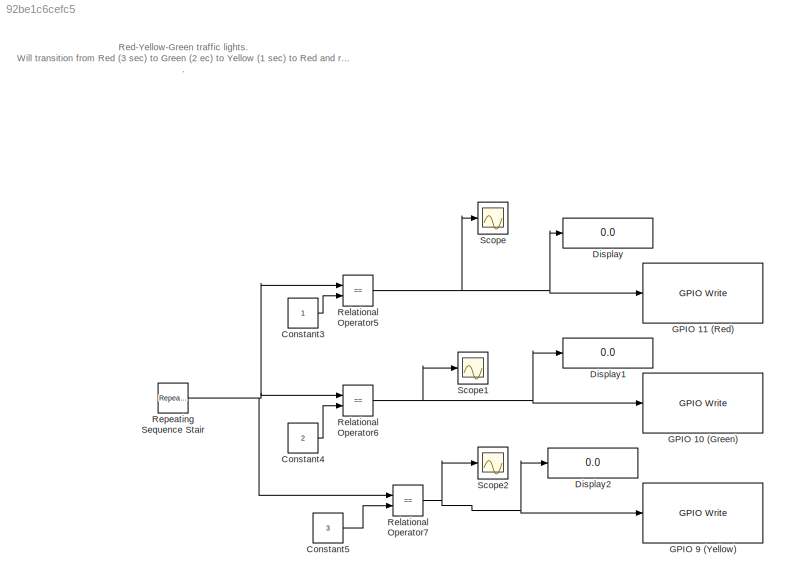
MODEL slx_92be1c6cefc5
KIND model
CONFIG AbsTol = auto
CONFIG EnableMultiTasking = on
CONFIG FixedStep = auto
CONFIG MaxStep = auto
CONFIG MinStep = auto
CONFIG RelTol = 1e-3
CONFIG SampleTimeConstraint = Unconstrained
CONFIG SolverName = FixedStepAuto
CONFIG StartTime = 0.0
CONFIG StopTime = 12
BLOCK [Constant] Constant3
BLOCK [Constant] Constant4
  Value = 2
BLOCK [Constant] Constant5
  Value = 3
BLOCK [Display] Display
  Decimation = 1
BLOCK [Display] Display1
  Decimation = 1
BLOCK [Display] Display2
  Decimation = 1
BLOCK [Reference] GPIO 10 (Green)  REF=raspberrypiBasiclib/GPIO Write
  SourceBlock = raspberrypiBasiclib/GPIO Write
  SourceType = GPIO Write
BLOCK [Reference] GPIO 11 (Red)  REF=raspberrypiBasiclib/GPIO Write
  SourceBlock = raspberrypiBasiclib/GPIO Write
  SourceType = GPIO Write
BLOCK [Reference] GPIO 9 (Yellow)  REF=raspberrypiBasiclib/GPIO Write
  SourceBlock = raspberrypiBasiclib/GPIO Write
  SourceType = GPIO Write
BLOCK [RelationalOperator] Relational Operator5
  InputSameDT = off
  Operator = ==
  OutDataTypeStr = boolean
  RndMeth = Simplest
BLOCK [RelationalOperator] Relational Operator6
  InputSameDT = off
  Operator = ==
  OutDataTypeStr = boolean
  RndMeth = Simplest
BLOCK [RelationalOperator] Relational Operator7
  InputSameDT = off
  Operator = ==
  OutDataTypeStr = boolean
  RndMeth = Simplest
BLOCK [Reference] Repeating Sequence Stair  REF=simulink/Sources/Repeating
Sequence
Stair
  SourceBlock = simulink/Sources/Repeating\nSequence\nStair
  SourceType = Repeating Sequence Stair
BLOCK [Scope] Scope
  Floating = off
  NumInputPorts = 1
  ScopeSpecificationString = Simulink.scopes.TimeScopeBlockCfg('CurrentConfiguration', extmgr.ConfigurationSet(extmgr.Configuration('Core','General UI',true),extmgr.Configuration('Core','Source UI',true),extmgr.Configuration('Sources','WiredSimulink',true),extmgr.Configuration('Visuals','Time Domain',true,'SerializedDisplays',{struct('MinYLimReal','-0.125','MaxYLimReal','1.125','YLabelReal','','MinYLimMag','0.00000','MaxYLimM...<+1357ch>
BLOCK [Scope] Scope1
  Floating = off
  NumInputPorts = 1
  ScopeSpecificationString = Simulink.scopes.TimeScopeBlockCfg('CurrentConfiguration', extmgr.ConfigurationSet(extmgr.Configuration('Core','General UI',true),extmgr.Configuration('Core','Source UI',true),extmgr.Configuration('Sources','WiredSimulink',true,'DataLoggingVariableName','ScopeData1'),extmgr.Configuration('Visuals','Time Domain',true,'SerializedDisplays',{struct('MinYLimReal','-0.125','MaxYLimReal','1.125','YLabelRe...<+1396ch>
BLOCK [Scope] Scope2
  Floating = off
  NumInputPorts = 1
  ScopeSpecificationString = Simulink.scopes.TimeScopeBlockCfg('CurrentConfiguration', extmgr.ConfigurationSet(extmgr.Configuration('Core','General UI',true),extmgr.Configuration('Core','Source UI',true),extmgr.Configuration('Sources','WiredSimulink',true,'DataLoggingVariableName','ScopeData2'),extmgr.Configuration('Visuals','Time Domain',true,'SerializedDisplays',{struct('MinYLimReal','-0.125','MaxYLimReal','1.125','YLabelRe...<+1396ch>
ANNOTATION (root): Red-Yellow-Green traffic lights. Will transition from Red (3 sec) to Green (2 ec) to Yellow (1 sec) to Red and repeat. .
LINE Constant3:1 -> Relational Operator5:2
LINE Constant4:1 -> Relational Operator6:2
LINE Constant5:1 -> Relational Operator7:2
NET Relational Operator5:1 -> Display:1, GPIO 11 (Red):1, Scope:1
NET Relational Operator6:1 -> Display1:1, GPIO 10 (Green):1, Scope1:1
NET Relational Operator7:1 -> Display2:1, GPIO 9 (Yellow):1, Scope2:1
NET Repeating Sequence Stair:1 -> Relational Operator5:1, Relational Operator6:1, Relational Operator7:1
note: NET lines group one-source signal fan-out (src -> all destinations, sorted); 1:1 wires keep LINE
